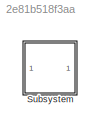
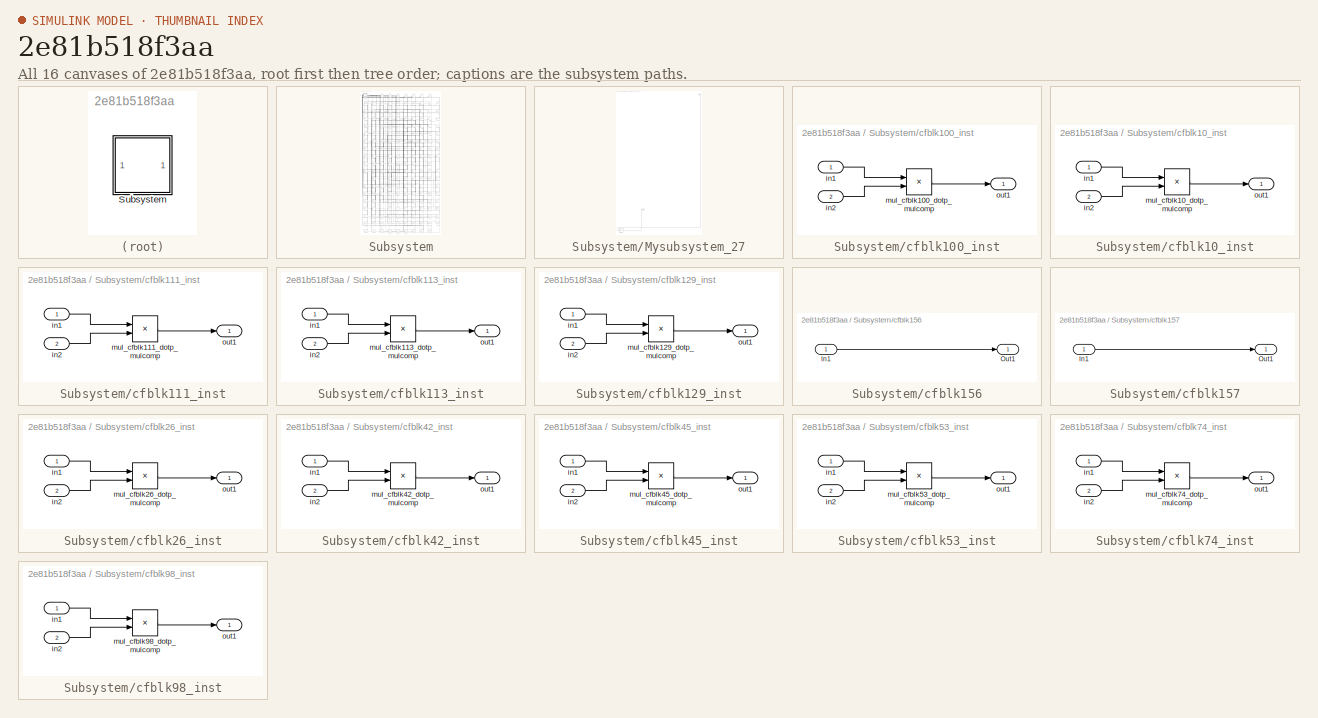
[diagram: thumbnail index - all 16 canvases of the model, root first then tree order]
MODEL slx_2e81b518f3aa
KIND model
CONFIG AbsTol = auto
CONFIG EnableMultiTasking = off
CONFIG FixedStep = auto
CONFIG MaxStep = auto
CONFIG MinStep = auto
CONFIG RelTol = 1e-3
CONFIG SampleTimeConstraint = Unconstrained
CONFIG SolverName = VariableStepAuto
CONFIG StartTime = 0.0
CONFIG StopTime = 10.0
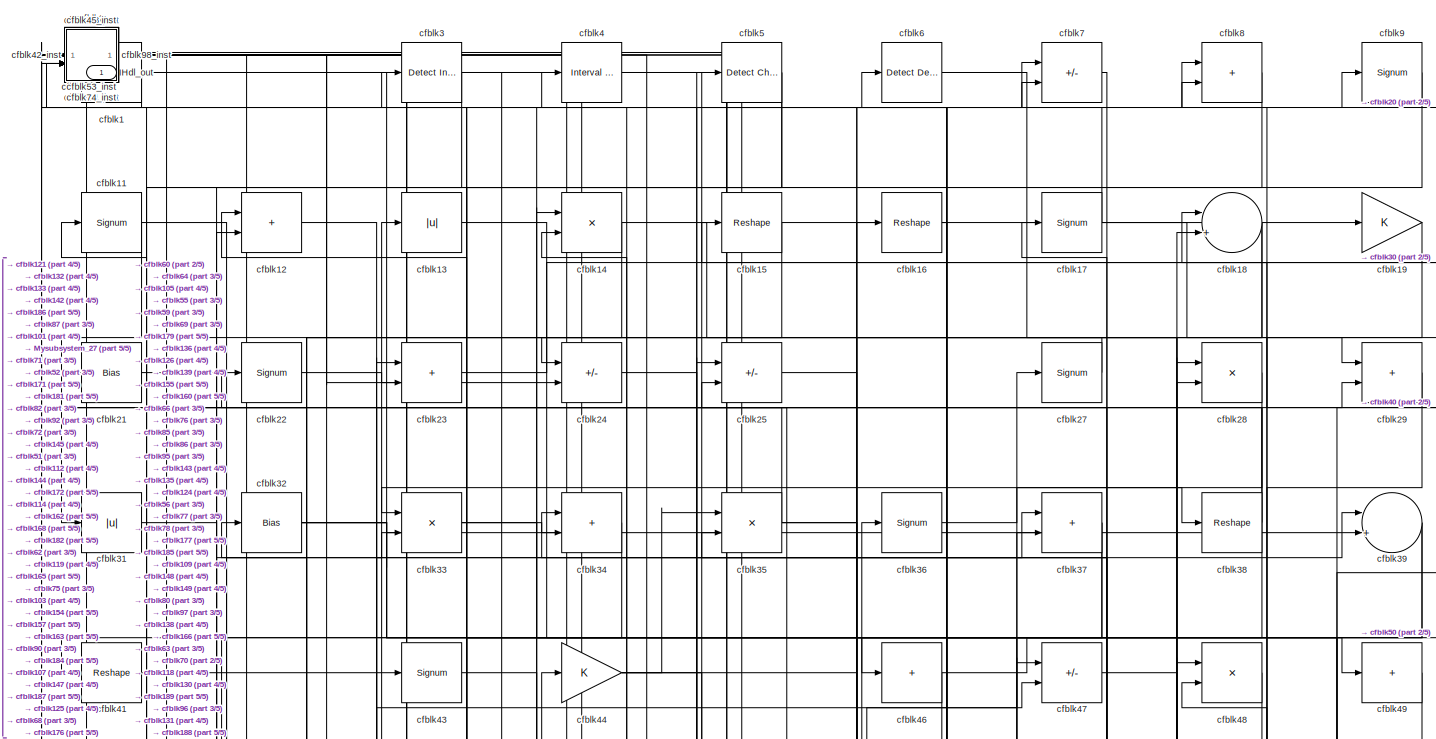
[diagram: Subsystem - part 1/5, full width, top band]
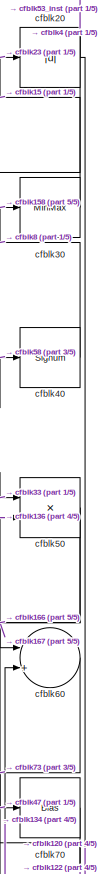
[diagram: Subsystem - part 2/5, top right region]
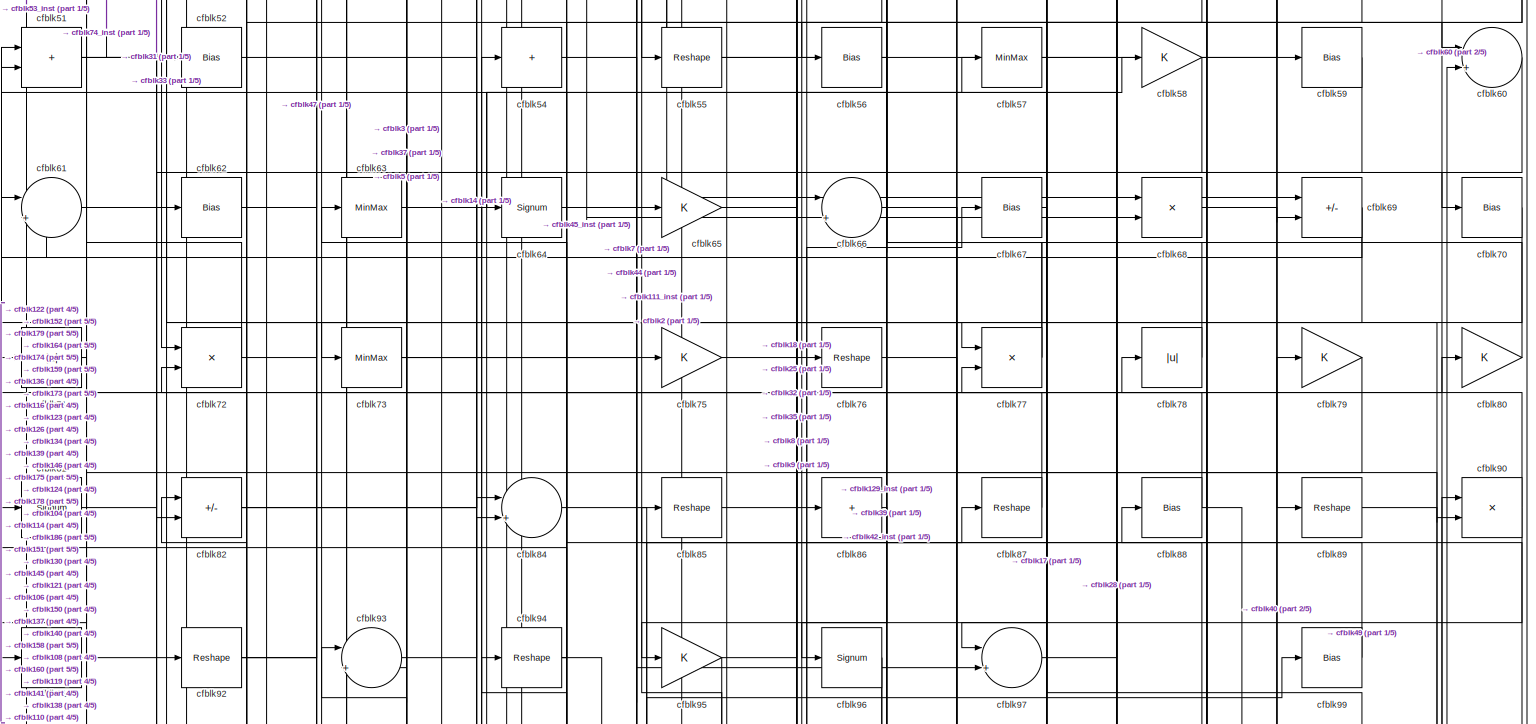
[diagram: Subsystem - part 3/5, full width, middle band]
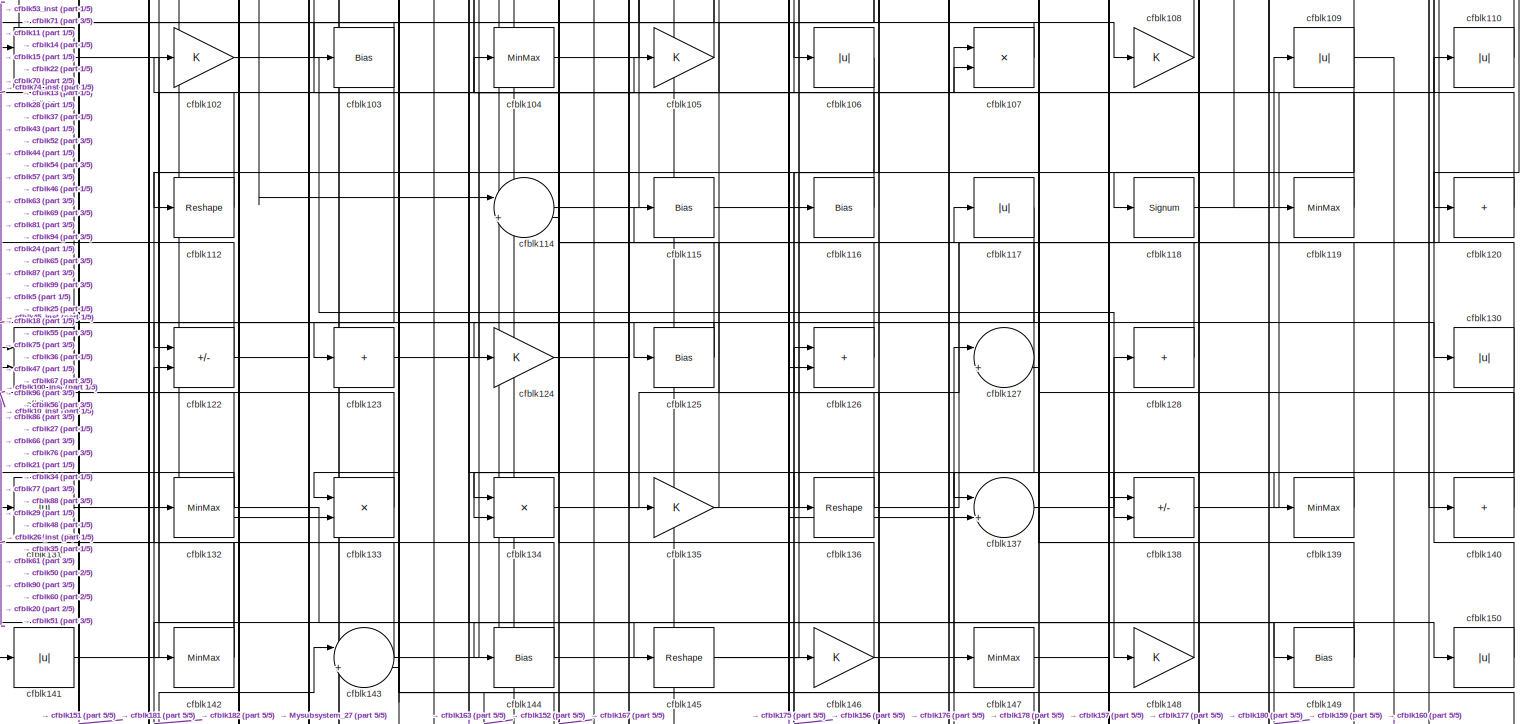
[diagram: Subsystem - part 4/5, full width, middle band]
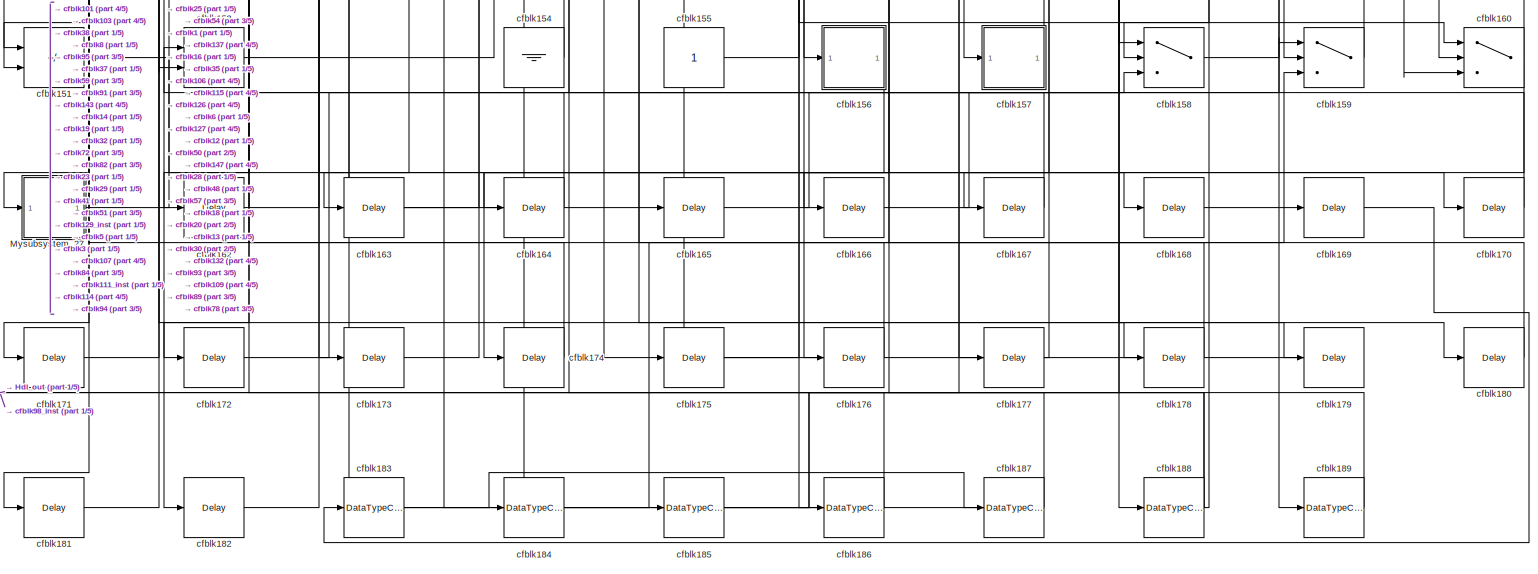
[diagram: Subsystem - part 5/5, full width, bottom band]
BLOCK [SubSystem] Subsystem
BLOCK [Outport] Subsystem/Hdl_out
  OutDataTypeStr = uint8
  SampleTime = 1
BLOCK [SubSystem] Subsystem/Mysubsystem_27
BLOCK [Inport] Subsystem/Mysubsystem_27/In1
  OutDataTypeStr = uint8
  PortDimensions = 1
  SampleTime = 1
BLOCK [Outport] Subsystem/Mysubsystem_27/Out1
  SampleTime = 1
BLOCK [Delay] Subsystem/Mysubsystem_27/cfblk161
  InputPortMap = u0
  SampleTime = 1
BLOCK [Reference] Subsystem/cfblk1  REF=simulink/Logic and Bit
Operations/Detect
Increase
  LibrarySourceBlock = hdlsllib/Logic and Bit\nOperations/Detect\nIncrease
  SourceBlock = simulink/Logic and Bit\nOperations/Detect\nIncrease
  SourceType = Detect Increase
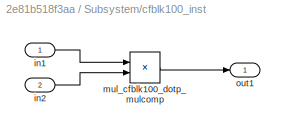
BLOCK [SubSystem] Subsystem/cfblk100_inst
BLOCK [Inport] Subsystem/cfblk100_inst/in1
  OutDataTypeStr = uint8
  SampleTime = 1
BLOCK [Inport] Subsystem/cfblk100_inst/in2
  OutDataTypeStr = uint8
  Port = 2
  SampleTime = 1
BLOCK [Product] Subsystem/cfblk100_inst/mul_cfblk100_dotp_mulcomp
  Inputs = **
  OutDataTypeStr = uint8
  SampleTime = 1
BLOCK [Outport] Subsystem/cfblk100_inst/out1
  OutDataTypeStr = uint8
  SampleTime = 1
BLOCK [Sum] Subsystem/cfblk101
  IconShape = rectangular
  OutDataTypeStr = uint8
BLOCK [Gain] Subsystem/cfblk102
  OutDataTypeStr = uint8
BLOCK [Bias] Subsystem/cfblk103
  Bias = 0.0
  SaturateOnIntegerOverflow = off
BLOCK [MinMax] Subsystem/cfblk104
  OutDataTypeStr = uint8
BLOCK [Gain] Subsystem/cfblk105
  OutDataTypeStr = uint8
BLOCK [Abs] Subsystem/cfblk106
  OutDataTypeStr = uint8
  SaturateOnIntegerOverflow = off
BLOCK [Product] Subsystem/cfblk107
  Inputs = */
  OutDataTypeStr = uint8
  RndMeth = Zero
  SaturateOnIntegerOverflow = on
BLOCK [Gain] Subsystem/cfblk108
  OutDataTypeStr = uint8
BLOCK [Abs] Subsystem/cfblk109
  OutDataTypeStr = uint8
  SaturateOnIntegerOverflow = off
BLOCK [SubSystem] Subsystem/cfblk10_inst
BLOCK [Inport] Subsystem/cfblk10_inst/in1
  OutDataTypeStr = uint8
  SampleTime = 1
BLOCK [Inport] Subsystem/cfblk10_inst/in2
  OutDataTypeStr = uint8
  Port = 2
  SampleTime = 1
BLOCK [Product] Subsystem/cfblk10_inst/mul_cfblk10_dotp_mulcomp
  Inputs = **
  OutDataTypeStr = uint8
  SampleTime = 1
BLOCK [Outport] Subsystem/cfblk10_inst/out1
  OutDataTypeStr = uint8
  SampleTime = 1
BLOCK [Signum] Subsystem/cfblk11
BLOCK [Abs] Subsystem/cfblk110
  OutDataTypeStr = uint8
  SaturateOnIntegerOverflow = off
BLOCK [SubSystem] Subsystem/cfblk111_inst
BLOCK [Inport] Subsystem/cfblk111_inst/in1
  OutDataTypeStr = uint8
  SampleTime = 1
BLOCK [Inport] Subsystem/cfblk111_inst/in2
  OutDataTypeStr = uint8
  Port = 2
  SampleTime = 1
BLOCK [Product] Subsystem/cfblk111_inst/mul_cfblk111_dotp_mulcomp
  Inputs = **
  OutDataTypeStr = uint8
  SampleTime = 1
BLOCK [Outport] Subsystem/cfblk111_inst/out1
  OutDataTypeStr = uint8
  SampleTime = 1
BLOCK [Reshape] Subsystem/cfblk112
BLOCK [SubSystem] Subsystem/cfblk113_inst
BLOCK [Inport] Subsystem/cfblk113_inst/in1
  OutDataTypeStr = uint8
  SampleTime = 1
BLOCK [Inport] Subsystem/cfblk113_inst/in2
  OutDataTypeStr = uint8
  Port = 2
  SampleTime = 1
BLOCK [Product] Subsystem/cfblk113_inst/mul_cfblk113_dotp_mulcomp
  Inputs = **
  OutDataTypeStr = uint8
  SampleTime = 1
BLOCK [Outport] Subsystem/cfblk113_inst/out1
  OutDataTypeStr = uint8
  SampleTime = 1
BLOCK [Sum] Subsystem/cfblk114
  Inputs = |++
  OutDataTypeStr = uint8
BLOCK [Bias] Subsystem/cfblk115
  Bias = 0.0
  SaturateOnIntegerOverflow = off
BLOCK [Bias] Subsystem/cfblk116
  Bias = 0.0
  SaturateOnIntegerOverflow = off
BLOCK [Abs] Subsystem/cfblk117
  OutDataTypeStr = uint8
  SaturateOnIntegerOverflow = off
BLOCK [Signum] Subsystem/cfblk118
BLOCK [MinMax] Subsystem/cfblk119
  OutDataTypeStr = uint8
BLOCK [Sum] Subsystem/cfblk12
  IconShape = rectangular
  OutDataTypeStr = uint8
BLOCK [Sum] Subsystem/cfblk120
  IconShape = rectangular
  Inputs = +
  OutDataTypeStr = uint8
BLOCK [Product] Subsystem/cfblk121
  Inputs = */
  OutDataTypeStr = uint8
  RndMeth = Zero
  SaturateOnIntegerOverflow = on
BLOCK [Sum] Subsystem/cfblk122
  IconShape = rectangular
  Inputs = +-
  OutDataTypeStr = uint8
BLOCK [Sum] Subsystem/cfblk123
  IconShape = rectangular
  Inputs = +
  OutDataTypeStr = uint8
BLOCK [Gain] Subsystem/cfblk124
  OutDataTypeStr = uint8
BLOCK [Bias] Subsystem/cfblk125
  Bias = 0.0
  SaturateOnIntegerOverflow = off
BLOCK [Sum] Subsystem/cfblk126
  IconShape = rectangular
  OutDataTypeStr = uint8
BLOCK [Sum] Subsystem/cfblk127
  Inputs = |++
  OutDataTypeStr = uint8
BLOCK [Sum] Subsystem/cfblk128
  IconShape = rectangular
  Inputs = +
  OutDataTypeStr = uint8
BLOCK [SubSystem] Subsystem/cfblk129_inst
BLOCK [Inport] Subsystem/cfblk129_inst/in1
  OutDataTypeStr = uint8
  SampleTime = 1
BLOCK [Inport] Subsystem/cfblk129_inst/in2
  OutDataTypeStr = uint8
  Port = 2
  SampleTime = 1
BLOCK [Product] Subsystem/cfblk129_inst/mul_cfblk129_dotp_mulcomp
  Inputs = **
  OutDataTypeStr = uint8
  SampleTime = 1
BLOCK [Outport] Subsystem/cfblk129_inst/out1
  OutDataTypeStr = uint8
  SampleTime = 1
BLOCK [Abs] Subsystem/cfblk13
  OutDataTypeStr = uint8
  SaturateOnIntegerOverflow = off
BLOCK [Abs] Subsystem/cfblk130
  OutDataTypeStr = uint8
  SaturateOnIntegerOverflow = off
BLOCK [Abs] Subsystem/cfblk131
  OutDataTypeStr = uint8
  SaturateOnIntegerOverflow = off
BLOCK [MinMax] Subsystem/cfblk132
  OutDataTypeStr = uint8
BLOCK [Product] Subsystem/cfblk133
  Inputs = */
  OutDataTypeStr = uint8
  RndMeth = Zero
  SaturateOnIntegerOverflow = on
BLOCK [Product] Subsystem/cfblk134
  Inputs = */
  OutDataTypeStr = uint8
  RndMeth = Zero
  SaturateOnIntegerOverflow = on
BLOCK [Gain] Subsystem/cfblk135
  OutDataTypeStr = uint8
BLOCK [Reshape] Subsystem/cfblk136
BLOCK [Sum] Subsystem/cfblk137
  Inputs = |++
  OutDataTypeStr = uint8
BLOCK [Sum] Subsystem/cfblk138
  IconShape = rectangular
  Inputs = +-
  OutDataTypeStr = uint8
BLOCK [MinMax] Subsystem/cfblk139
  OutDataTypeStr = uint8
BLOCK [Product] Subsystem/cfblk14
  Inputs = */
  OutDataTypeStr = uint8
  RndMeth = Zero
  SaturateOnIntegerOverflow = on
BLOCK [Sum] Subsystem/cfblk140
  IconShape = rectangular
  Inputs = +
  OutDataTypeStr = uint8
BLOCK [Abs] Subsystem/cfblk141
  OutDataTypeStr = uint8
  SaturateOnIntegerOverflow = off
BLOCK [MinMax] Subsystem/cfblk142
  OutDataTypeStr = uint8
BLOCK [Sum] Subsystem/cfblk143
  Inputs = |++
  OutDataTypeStr = uint8
BLOCK [Bias] Subsystem/cfblk144
  Bias = 0.0
  SaturateOnIntegerOverflow = off
BLOCK [Reshape] Subsystem/cfblk145
BLOCK [Gain] Subsystem/cfblk146
  OutDataTypeStr = uint8
BLOCK [MinMax] Subsystem/cfblk147
  OutDataTypeStr = uint8
BLOCK [Gain] Subsystem/cfblk148
  OutDataTypeStr = uint8
BLOCK [Bias] Subsystem/cfblk149
  Bias = 0.0
  SaturateOnIntegerOverflow = off
BLOCK [Reshape] Subsystem/cfblk15
BLOCK [Abs] Subsystem/cfblk150
  OutDataTypeStr = uint8
  SaturateOnIntegerOverflow = off
BLOCK [Sum] Subsystem/cfblk151
  IconShape = rectangular
  Inputs = +-
  OutDataTypeStr = uint8
BLOCK [Sum] Subsystem/cfblk152
  IconShape = rectangular
  OutDataTypeStr = uint8
BLOCK [Ground] Subsystem/cfblk154
BLOCK [Constant] Subsystem/cfblk155
  OutDataTypeStr = uint8
  SampleTime = -1
BLOCK [SubSystem] Subsystem/cfblk156
BLOCK [Inport] Subsystem/cfblk156/In1
  OutDataTypeStr = uint8
  PortDimensions = 1
  SampleTime = 1
BLOCK [Outport] Subsystem/cfblk156/Out1
  SampleTime = 1
BLOCK [SubSystem] Subsystem/cfblk157
BLOCK [Inport] Subsystem/cfblk157/In1
  OutDataTypeStr = uint8
  PortDimensions = 1
  SampleTime = 1
BLOCK [Outport] Subsystem/cfblk157/Out1
  SampleTime = 1
BLOCK [Switch] Subsystem/cfblk158
  InputSameDT = off
  OutDataTypeStr = uint8
  SaturateOnIntegerOverflow = off
BLOCK [Switch] Subsystem/cfblk159
  InputSameDT = off
  OutDataTypeStr = uint8
  SaturateOnIntegerOverflow = off
BLOCK [Reshape] Subsystem/cfblk16
BLOCK [Switch] Subsystem/cfblk160
  InputSameDT = off
  OutDataTypeStr = uint8
  SaturateOnIntegerOverflow = off
BLOCK [Delay] Subsystem/cfblk162
  InputPortMap = u0
  SampleTime = 1
BLOCK [Delay] Subsystem/cfblk163
  InputPortMap = u0
  SampleTime = 1
BLOCK [Delay] Subsystem/cfblk164
  InputPortMap = u0
  SampleTime = 1
BLOCK [Delay] Subsystem/cfblk165
  InputPortMap = u0
  SampleTime = 1
BLOCK [Delay] Subsystem/cfblk166
  InputPortMap = u0
  SampleTime = 1
BLOCK [Delay] Subsystem/cfblk167
  InputPortMap = u0
  SampleTime = 1
BLOCK [Delay] Subsystem/cfblk168
  InputPortMap = u0
  SampleTime = 1
BLOCK [Delay] Subsystem/cfblk169
  InputPortMap = u0
  SampleTime = 1
BLOCK [Signum] Subsystem/cfblk17
BLOCK [Delay] Subsystem/cfblk170
  InputPortMap = u0
  SampleTime = 1
BLOCK [Delay] Subsystem/cfblk171
  InputPortMap = u0
  SampleTime = 1
BLOCK [Delay] Subsystem/cfblk172
  InputPortMap = u0
  SampleTime = 1
BLOCK [Delay] Subsystem/cfblk173
  InputPortMap = u0
  SampleTime = 1
BLOCK [Delay] Subsystem/cfblk174
  InputPortMap = u0
  SampleTime = 1
BLOCK [Delay] Subsystem/cfblk175
  InputPortMap = u0
  SampleTime = 1
BLOCK [Delay] Subsystem/cfblk176
  InputPortMap = u0
  SampleTime = 1
BLOCK [Delay] Subsystem/cfblk177
  InputPortMap = u0
  SampleTime = 1
BLOCK [Delay] Subsystem/cfblk178
  InputPortMap = u0
  SampleTime = 1
BLOCK [Delay] Subsystem/cfblk179
  InputPortMap = u0
  SampleTime = 1
BLOCK [Sum] Subsystem/cfblk18
  Inputs = |++
  OutDataTypeStr = uint8
BLOCK [Delay] Subsystem/cfblk180
  InputPortMap = u0
  SampleTime = 1
BLOCK [Delay] Subsystem/cfblk181
  InputPortMap = u0
  SampleTime = 1
BLOCK [Delay] Subsystem/cfblk182
  InputPortMap = u0
  SampleTime = 1
BLOCK [DataTypeConversion] Subsystem/cfblk183
  OutDataTypeStr = uint8
  RndMeth = Floor
  SaturateOnIntegerOverflow = off
BLOCK [DataTypeConversion] Subsystem/cfblk184
  OutDataTypeStr = uint8
  RndMeth = Floor
  SaturateOnIntegerOverflow = off
BLOCK [DataTypeConversion] Subsystem/cfblk185
  OutDataTypeStr = uint8
  RndMeth = Floor
  SaturateOnIntegerOverflow = off
BLOCK [DataTypeConversion] Subsystem/cfblk186
  OutDataTypeStr = uint8
  RndMeth = Floor
  SaturateOnIntegerOverflow = off
BLOCK [DataTypeConversion] Subsystem/cfblk187
  OutDataTypeStr = uint8
  RndMeth = Floor
  SaturateOnIntegerOverflow = off
BLOCK [DataTypeConversion] Subsystem/cfblk188
  OutDataTypeStr = uint8
  RndMeth = Floor
  SaturateOnIntegerOverflow = off
BLOCK [DataTypeConversion] Subsystem/cfblk189
  OutDataTypeStr = uint8
  RndMeth = Floor
  SaturateOnIntegerOverflow = off
BLOCK [Gain] Subsystem/cfblk19
  OutDataTypeStr = uint8
BLOCK [Constant] Subsystem/cfblk2
  OutDataTypeStr = uint8
  SampleTime = 1
  Value = 0
BLOCK [Abs] Subsystem/cfblk20
  OutDataTypeStr = uint8
  SaturateOnIntegerOverflow = off
BLOCK [Bias] Subsystem/cfblk21
  Bias = 0.0
  SaturateOnIntegerOverflow = off
BLOCK [Signum] Subsystem/cfblk22
BLOCK [Sum] Subsystem/cfblk23
  IconShape = rectangular
  OutDataTypeStr = uint8
BLOCK [Sum] Subsystem/cfblk24
  IconShape = rectangular
  Inputs = +-
  OutDataTypeStr = uint8
BLOCK [Sum] Subsystem/cfblk25
  IconShape = rectangular
  Inputs = +-
  OutDataTypeStr = uint8
BLOCK [SubSystem] Subsystem/cfblk26_inst
BLOCK [Inport] Subsystem/cfblk26_inst/in1
  OutDataTypeStr = uint8
  SampleTime = 1
BLOCK [Inport] Subsystem/cfblk26_inst/in2
  OutDataTypeStr = uint8
  Port = 2
  SampleTime = 1
BLOCK [Product] Subsystem/cfblk26_inst/mul_cfblk26_dotp_mulcomp
  Inputs = **
  OutDataTypeStr = uint8
  SampleTime = 1
BLOCK [Outport] Subsystem/cfblk26_inst/out1
  OutDataTypeStr = uint8
  SampleTime = 1
BLOCK [Signum] Subsystem/cfblk27
BLOCK [Product] Subsystem/cfblk28
  Inputs = */
  OutDataTypeStr = uint8
  RndMeth = Zero
  SaturateOnIntegerOverflow = on
BLOCK [Sum] Subsystem/cfblk29
  IconShape = rectangular
  OutDataTypeStr = uint8
BLOCK [Reference] Subsystem/cfblk3  REF=simulink/Logic and Bit
Operations/Detect
Increase
  LibrarySourceBlock = hdlsllib/Logic and Bit\nOperations/Detect\nIncrease
  SourceBlock = simulink/Logic and Bit\nOperations/Detect\nIncrease
  SourceType = Detect Increase
BLOCK [MinMax] Subsystem/cfblk30
  OutDataTypeStr = uint8
BLOCK [Abs] Subsystem/cfblk31
  OutDataTypeStr = uint8
  SaturateOnIntegerOverflow = off
BLOCK [Bias] Subsystem/cfblk32
  Bias = 0.0
  SaturateOnIntegerOverflow = off
BLOCK [Product] Subsystem/cfblk33
  Inputs = */
  OutDataTypeStr = uint8
  RndMeth = Zero
  SaturateOnIntegerOverflow = on
BLOCK [Sum] Subsystem/cfblk34
  IconShape = rectangular
  OutDataTypeStr = uint8
BLOCK [Product] Subsystem/cfblk35
  Inputs = */
  OutDataTypeStr = uint8
  RndMeth = Zero
  SaturateOnIntegerOverflow = on
BLOCK [Signum] Subsystem/cfblk36
BLOCK [Sum] Subsystem/cfblk37
  IconShape = rectangular
  OutDataTypeStr = uint8
BLOCK [Reshape] Subsystem/cfblk38
BLOCK [Sum] Subsystem/cfblk39
  Inputs = |++
  OutDataTypeStr = uint8
BLOCK [Reference] Subsystem/cfblk4  REF=hdlsllib/Logic and Bit
Operations/Interval Test
  SourceBlock = hdlsllib/Logic and Bit\nOperations/Interval Test
  SourceType = Interval Test
BLOCK [Signum] Subsystem/cfblk40
BLOCK [Reshape] Subsystem/cfblk41
BLOCK [SubSystem] Subsystem/cfblk42_inst
BLOCK [Inport] Subsystem/cfblk42_inst/in1
  OutDataTypeStr = uint8
  SampleTime = 1
BLOCK [Inport] Subsystem/cfblk42_inst/in2
  OutDataTypeStr = uint8
  Port = 2
  SampleTime = 1
BLOCK [Product] Subsystem/cfblk42_inst/mul_cfblk42_dotp_mulcomp
  Inputs = **
  OutDataTypeStr = uint8
  SampleTime = 1
BLOCK [Outport] Subsystem/cfblk42_inst/out1
  OutDataTypeStr = uint8
  SampleTime = 1
BLOCK [Signum] Subsystem/cfblk43
BLOCK [Gain] Subsystem/cfblk44
  OutDataTypeStr = uint8
BLOCK [SubSystem] Subsystem/cfblk45_inst
BLOCK [Inport] Subsystem/cfblk45_inst/in1
  OutDataTypeStr = uint8
  SampleTime = 1
BLOCK [Inport] Subsystem/cfblk45_inst/in2
  OutDataTypeStr = uint8
  Port = 2
  SampleTime = 1
BLOCK [Product] Subsystem/cfblk45_inst/mul_cfblk45_dotp_mulcomp
  Inputs = **
  OutDataTypeStr = uint8
  SampleTime = 1
BLOCK [Outport] Subsystem/cfblk45_inst/out1
  OutDataTypeStr = uint8
  SampleTime = 1
BLOCK [Sum] Subsystem/cfblk46
  IconShape = rectangular
  Inputs = +
  OutDataTypeStr = uint8
BLOCK [Sum] Subsystem/cfblk47
  IconShape = rectangular
  Inputs = +-
  OutDataTypeStr = uint8
BLOCK [Product] Subsystem/cfblk48
  Inputs = */
  OutDataTypeStr = uint8
  RndMeth = Zero
  SaturateOnIntegerOverflow = on
BLOCK [Sum] Subsystem/cfblk49
  IconShape = rectangular
  Inputs = +
  OutDataTypeStr = uint8
BLOCK [Reference] Subsystem/cfblk5  REF=simulink/Logic and Bit
Operations/Detect
Change
  LibrarySourceBlock = hdlsllib/Logic and Bit\nOperations/Detect\nChange
  SourceBlock = simulink/Logic and Bit\nOperations/Detect\nChange
  SourceType = Detect Change
BLOCK [Product] Subsystem/cfblk50
  Inputs = */
  OutDataTypeStr = uint8
  RndMeth = Zero
  SaturateOnIntegerOverflow = on
BLOCK [Sum] Subsystem/cfblk51
  IconShape = rectangular
  OutDataTypeStr = uint8
BLOCK [Bias] Subsystem/cfblk52
  Bias = 0.0
  SaturateOnIntegerOverflow = off
BLOCK [SubSystem] Subsystem/cfblk53_inst
BLOCK [Inport] Subsystem/cfblk53_inst/in1
  OutDataTypeStr = uint8
  SampleTime = 1
BLOCK [Inport] Subsystem/cfblk53_inst/in2
  OutDataTypeStr = uint8
  Port = 2
  SampleTime = 1
BLOCK [Product] Subsystem/cfblk53_inst/mul_cfblk53_dotp_mulcomp
  Inputs = **
  OutDataTypeStr = uint8
  SampleTime = 1
BLOCK [Outport] Subsystem/cfblk53_inst/out1
  OutDataTypeStr = uint8
  SampleTime = 1
BLOCK [Sum] Subsystem/cfblk54
  IconShape = rectangular
  Inputs = +
  OutDataTypeStr = uint8
BLOCK [Reshape] Subsystem/cfblk55
BLOCK [Bias] Subsystem/cfblk56
  Bias = 0.0
  SaturateOnIntegerOverflow = off
BLOCK [MinMax] Subsystem/cfblk57
  OutDataTypeStr = uint8
BLOCK [Gain] Subsystem/cfblk58
  OutDataTypeStr = uint8
BLOCK [Bias] Subsystem/cfblk59
  Bias = 0.0
  SaturateOnIntegerOverflow = off
BLOCK [Reference] Subsystem/cfblk6  REF=simulink/Logic and Bit
Operations/Detect
Decrease
  LibrarySourceBlock = hdlsllib/Logic and Bit\nOperations/Detect\nDecrease
  SourceBlock = simulink/Logic and Bit\nOperations/Detect\nDecrease
  SourceType = Detect Decrease
BLOCK [Sum] Subsystem/cfblk60
  Inputs = |++
  OutDataTypeStr = uint8
BLOCK [Sum] Subsystem/cfblk61
  Inputs = |++
  OutDataTypeStr = uint8
BLOCK [Bias] Subsystem/cfblk62
  Bias = 0.0
  SaturateOnIntegerOverflow = off
BLOCK [MinMax] Subsystem/cfblk63
  OutDataTypeStr = uint8
BLOCK [Signum] Subsystem/cfblk64
BLOCK [Gain] Subsystem/cfblk65
  OutDataTypeStr = uint8
BLOCK [Sum] Subsystem/cfblk66
  Inputs = |++
  OutDataTypeStr = uint8
BLOCK [Bias] Subsystem/cfblk67
  Bias = 0.0
  SaturateOnIntegerOverflow = off
BLOCK [Product] Subsystem/cfblk68
  Inputs = */
  OutDataTypeStr = uint8
  RndMeth = Zero
  SaturateOnIntegerOverflow = on
BLOCK [Sum] Subsystem/cfblk69
  IconShape = rectangular
  Inputs = +-
  OutDataTypeStr = uint8
BLOCK [Sum] Subsystem/cfblk7
  IconShape = rectangular
  Inputs = +-
  OutDataTypeStr = uint8
BLOCK [Bias] Subsystem/cfblk70
  Bias = 0.0
  SaturateOnIntegerOverflow = off
BLOCK [Abs] Subsystem/cfblk71
  OutDataTypeStr = uint8
  SaturateOnIntegerOverflow = off
BLOCK [Product] Subsystem/cfblk72
  Inputs = */
  OutDataTypeStr = uint8
  RndMeth = Zero
  SaturateOnIntegerOverflow = on
BLOCK [MinMax] Subsystem/cfblk73
  OutDataTypeStr = uint8
BLOCK [SubSystem] Subsystem/cfblk74_inst
BLOCK [Inport] Subsystem/cfblk74_inst/in1
  OutDataTypeStr = uint8
  SampleTime = 1
BLOCK [Inport] Subsystem/cfblk74_inst/in2
  OutDataTypeStr = uint8
  Port = 2
  SampleTime = 1
BLOCK [Product] Subsystem/cfblk74_inst/mul_cfblk74_dotp_mulcomp
  Inputs = **
  OutDataTypeStr = uint8
  SampleTime = 1
BLOCK [Outport] Subsystem/cfblk74_inst/out1
  OutDataTypeStr = uint8
  SampleTime = 1
BLOCK [Gain] Subsystem/cfblk75
  OutDataTypeStr = uint8
BLOCK [Reshape] Subsystem/cfblk76
BLOCK [Product] Subsystem/cfblk77
  Inputs = */
  OutDataTypeStr = uint8
  RndMeth = Zero
  SaturateOnIntegerOverflow = on
BLOCK [Abs] Subsystem/cfblk78
  OutDataTypeStr = uint8
  SaturateOnIntegerOverflow = off
BLOCK [Gain] Subsystem/cfblk79
  OutDataTypeStr = uint8
BLOCK [Sum] Subsystem/cfblk8
  IconShape = rectangular
  OutDataTypeStr = uint8
BLOCK [Gain] Subsystem/cfblk80
  OutDataTypeStr = uint8
BLOCK [Signum] Subsystem/cfblk81
BLOCK [Sum] Subsystem/cfblk82
  IconShape = rectangular
  Inputs = +-
  OutDataTypeStr = uint8
BLOCK [Sum] Subsystem/cfblk84
  Inputs = |++
  OutDataTypeStr = uint8
BLOCK [Reshape] Subsystem/cfblk85
BLOCK [Sum] Subsystem/cfblk86
  IconShape = rectangular
  Inputs = +
  OutDataTypeStr = uint8
BLOCK [Reshape] Subsystem/cfblk87
BLOCK [Bias] Subsystem/cfblk88
  Bias = 0.0
  SaturateOnIntegerOverflow = off
BLOCK [Reshape] Subsystem/cfblk89
BLOCK [Signum] Subsystem/cfblk9
BLOCK [Product] Subsystem/cfblk90
  Inputs = */
  OutDataTypeStr = uint8
  RndMeth = Zero
  SaturateOnIntegerOverflow = on
BLOCK [Sum] Subsystem/cfblk91
  IconShape = rectangular
  Inputs = +
  OutDataTypeStr = uint8
BLOCK [Reshape] Subsystem/cfblk92
BLOCK [Sum] Subsystem/cfblk93
  Inputs = |++
  OutDataTypeStr = uint8
BLOCK [Reshape] Subsystem/cfblk94
BLOCK [Gain] Subsystem/cfblk95
  OutDataTypeStr = uint8
BLOCK [Signum] Subsystem/cfblk96
BLOCK [Sum] Subsystem/cfblk97
  Inputs = |++
  OutDataTypeStr = uint8
BLOCK [SubSystem] Subsystem/cfblk98_inst
BLOCK [Inport] Subsystem/cfblk98_inst/in1
  OutDataTypeStr = uint8
  SampleTime = 1
BLOCK [Inport] Subsystem/cfblk98_inst/in2
  OutDataTypeStr = uint8
  Port = 2
  SampleTime = 1
BLOCK [Product] Subsystem/cfblk98_inst/mul_cfblk98_dotp_mulcomp
  Inputs = **
  OutDataTypeStr = uint8
  SampleTime = 1
BLOCK [Outport] Subsystem/cfblk98_inst/out1
  OutDataTypeStr = uint8
  SampleTime = 1
BLOCK [Bias] Subsystem/cfblk99
  Bias = 0.0
  SaturateOnIntegerOverflow = off
LINE Subsystem/Mysubsystem_27/In1:1 -> Subsystem/Mysubsystem_27/cfblk161:1
LINE Subsystem/Mysubsystem_27/cfblk161:1 -> Subsystem/Mysubsystem_27/Out1:1
LINE Subsystem/Mysubsystem_27:1 -> Subsystem/cfblk143:1
LINE Subsystem/cfblk100_inst/in1:1 -> Subsystem/cfblk100_inst/mul_cfblk100_dotp_mulcomp:1
LINE Subsystem/cfblk100_inst/in2:1 -> Subsystem/cfblk100_inst/mul_cfblk100_dotp_mulcomp:2
LINE Subsystem/cfblk100_inst/mul_cfblk100_dotp_mulcomp:1 -> Subsystem/cfblk100_inst/out1:1
LINE Subsystem/cfblk100_inst:1 -> Subsystem/cfblk113_inst:1
LINE Subsystem/cfblk101:1 -> Subsystem/cfblk125:1
LINE Subsystem/cfblk102:1 -> Subsystem/cfblk148:1
NET Subsystem/cfblk103:1 -> Subsystem/cfblk151:2, Subsystem/cfblk181:1
LINE Subsystem/cfblk104:1 -> Subsystem/cfblk87:1
LINE Subsystem/cfblk105:1 -> Subsystem/cfblk5:1
LINE Subsystem/cfblk106:1 -> Subsystem/cfblk176:1
LINE Subsystem/cfblk107:1 -> Subsystem/cfblk44:1
LINE Subsystem/cfblk108:1 -> Subsystem/cfblk88:1
NET Subsystem/cfblk109:1 -> Subsystem/cfblk160:3, Subsystem/cfblk182:1, Subsystem/cfblk35:2
LINE Subsystem/cfblk10_inst/in1:1 -> Subsystem/cfblk10_inst/mul_cfblk10_dotp_mulcomp:1
LINE Subsystem/cfblk10_inst/in2:1 -> Subsystem/cfblk10_inst/mul_cfblk10_dotp_mulcomp:2
LINE Subsystem/cfblk10_inst/mul_cfblk10_dotp_mulcomp:1 -> Subsystem/cfblk10_inst/out1:1
LINE Subsystem/cfblk10_inst:1 -> Subsystem/cfblk19:1
LINE Subsystem/cfblk110:1 -> Subsystem/cfblk51:1
LINE Subsystem/cfblk111_inst/in1:1 -> Subsystem/cfblk111_inst/mul_cfblk111_dotp_mulcomp:1
LINE Subsystem/cfblk111_inst/in2:1 -> Subsystem/cfblk111_inst/mul_cfblk111_dotp_mulcomp:2
LINE Subsystem/cfblk111_inst/mul_cfblk111_dotp_mulcomp:1 -> Subsystem/cfblk111_inst/out1:1
LINE Subsystem/cfblk111_inst:1 -> Subsystem/cfblk59:1
LINE Subsystem/cfblk112:1 -> Subsystem/cfblk102:1
LINE Subsystem/cfblk113_inst/in1:1 -> Subsystem/cfblk113_inst/mul_cfblk113_dotp_mulcomp:1
LINE Subsystem/cfblk113_inst/in2:1 -> Subsystem/cfblk113_inst/mul_cfblk113_dotp_mulcomp:2
LINE Subsystem/cfblk113_inst/mul_cfblk113_dotp_mulcomp:1 -> Subsystem/cfblk113_inst/out1:1
LINE Subsystem/cfblk113_inst:1 -> Subsystem/cfblk10_inst:1
LINE Subsystem/cfblk114:1 -> Subsystem/cfblk99:1
LINE Subsystem/cfblk115:1 -> Subsystem/cfblk156:1
LINE Subsystem/cfblk116:1 -> Subsystem/cfblk54:1
LINE Subsystem/cfblk117:1 -> Subsystem/cfblk123:1
LINE Subsystem/cfblk118:1 -> Subsystem/cfblk109:1
LINE Subsystem/cfblk119:1 -> Subsystem/cfblk13:1
NET Subsystem/cfblk11:1 -> Subsystem/cfblk145:1, Subsystem/cfblk31:1
LINE Subsystem/cfblk120:1 -> Subsystem/cfblk107:1
LINE Subsystem/cfblk121:1 -> Subsystem/cfblk74_inst:2
NET Subsystem/cfblk122:1 -> Subsystem/cfblk105:1, Subsystem/cfblk51:2
LINE Subsystem/cfblk123:1 -> Subsystem/cfblk57:1
LINE Subsystem/cfblk124:1 -> Subsystem/cfblk65:1
NET Subsystem/cfblk125:1 -> Subsystem/cfblk121:1, Subsystem/cfblk45_inst:1
LINE Subsystem/cfblk126:1 -> Subsystem/cfblk81:1
NET Subsystem/cfblk127:1 -> Subsystem/cfblk104:1, Subsystem/cfblk157:1
LINE Subsystem/cfblk128:1 -> Subsystem/cfblk117:1
LINE Subsystem/cfblk129_inst/in1:1 -> Subsystem/cfblk129_inst/mul_cfblk129_dotp_mulcomp:1
LINE Subsystem/cfblk129_inst/in2:1 -> Subsystem/cfblk129_inst/mul_cfblk129_dotp_mulcomp:2
LINE Subsystem/cfblk129_inst/mul_cfblk129_dotp_mulcomp:1 -> Subsystem/cfblk129_inst/out1:1
NET Subsystem/cfblk129_inst:1 -> Subsystem/cfblk165:1, Subsystem/cfblk26_inst:2
LINE Subsystem/cfblk12:1 -> Subsystem/cfblk43:1
NET Subsystem/cfblk130:1 -> Subsystem/cfblk138:2, Subsystem/cfblk48:2
LINE Subsystem/cfblk131:1 -> Subsystem/cfblk27:1
NET Subsystem/cfblk132:1 -> Subsystem/cfblk100_inst:2, Subsystem/cfblk131:1, Subsystem/cfblk159:2
LINE Subsystem/cfblk133:1 -> Subsystem/cfblk10_inst:2
LINE Subsystem/cfblk134:1 -> Subsystem/cfblk60:2
NET Subsystem/cfblk135:1 -> Subsystem/cfblk115:1, Subsystem/cfblk47:2
NET Subsystem/cfblk136:1 -> Subsystem/cfblk25:2, Subsystem/cfblk50:2
LINE Subsystem/cfblk137:1 -> Subsystem/cfblk128:1
LINE Subsystem/cfblk138:1 -> Subsystem/cfblk90:1
LINE Subsystem/cfblk139:1 -> Subsystem/cfblk63:1
LINE Subsystem/cfblk13:1 -> Subsystem/cfblk189:1
LINE Subsystem/cfblk140:1 -> Subsystem/cfblk77:2
LINE Subsystem/cfblk141:1 -> Subsystem/cfblk79:1
NET Subsystem/cfblk142:1 -> Subsystem/cfblk26_inst:1, Subsystem/cfblk45_inst:2
NET Subsystem/cfblk143:1 -> Subsystem/cfblk122:2, Subsystem/cfblk36:1
LINE Subsystem/cfblk144:1 -> Subsystem/cfblk22:1
LINE Subsystem/cfblk145:1 -> Subsystem/cfblk67:1
LINE Subsystem/cfblk146:1 -> Subsystem/cfblk94:1
LINE Subsystem/cfblk147:1 -> Subsystem/cfblk180:1
LINE Subsystem/cfblk148:1 -> Subsystem/cfblk21:1
NET Subsystem/cfblk149:1 -> Subsystem/cfblk144:1, Subsystem/cfblk34:1
NET Subsystem/cfblk14:1 -> Subsystem/cfblk138:1, Subsystem/cfblk172:1
LINE Subsystem/cfblk150:1 -> Subsystem/cfblk110:1
LINE Subsystem/cfblk151:1 -> Subsystem/cfblk170:1
LINE Subsystem/cfblk152:1 -> Subsystem/cfblk127:1
LINE Subsystem/cfblk154:1 -> Subsystem/cfblk111_inst:1
LINE Subsystem/cfblk155:1 -> Subsystem/cfblk16:1
LINE Subsystem/cfblk156/In1:1 -> Subsystem/cfblk156/Out1:1
LINE Subsystem/cfblk156:1 -> Subsystem/cfblk174:1
LINE Subsystem/cfblk157/In1:1 -> Subsystem/cfblk157/Out1:1
LINE Subsystem/cfblk157:1 -> Subsystem/cfblk12:1
LINE Subsystem/cfblk158:1 -> Subsystem/cfblk30:1
LINE Subsystem/cfblk159:1 -> Subsystem/cfblk93:1
LINE Subsystem/cfblk15:1 -> Subsystem/cfblk112:1
NET Subsystem/cfblk160:1 -> Subsystem/cfblk164:1, Subsystem/cfblk78:1
LINE Subsystem/cfblk162:1 -> Subsystem/cfblk23:1
LINE Subsystem/cfblk163:1 -> Subsystem/cfblk107:2
LINE Subsystem/cfblk164:1 -> Subsystem/cfblk82:1
LINE Subsystem/cfblk165:1 -> Subsystem/cfblk159:1
LINE Subsystem/cfblk166:1 -> Subsystem/cfblk28:2
LINE Subsystem/cfblk167:1 -> Subsystem/cfblk114:2
LINE Subsystem/cfblk168:1 -> Subsystem/cfblk159:3
LINE Subsystem/cfblk169:1 -> Subsystem/cfblk183:1
LINE Subsystem/cfblk16:1 -> Subsystem/cfblk46:1
LINE Subsystem/cfblk170:1 -> Subsystem/cfblk152:1
LINE Subsystem/cfblk171:1 -> Subsystem/cfblk37:1
LINE Subsystem/cfblk172:1 -> Subsystem/cfblk158:3
LINE Subsystem/cfblk173:1 -> Subsystem/cfblk84:1
LINE Subsystem/cfblk174:1 -> Subsystem/cfblk72:2
LINE Subsystem/cfblk175:1 -> Subsystem/cfblk137:2
LINE Subsystem/cfblk176:1 -> Subsystem/cfblk25:1
LINE Subsystem/cfblk177:1 -> Subsystem/cfblk127:2
LINE Subsystem/cfblk178:1 -> Subsystem/cfblk126:1
LINE Subsystem/cfblk179:1 -> Subsystem/cfblk1:1
NET Subsystem/cfblk17:1 -> Subsystem/cfblk29:1, Subsystem/cfblk42_inst:2
LINE Subsystem/cfblk180:1 -> Subsystem/cfblk101:1
LINE Subsystem/cfblk181:1 -> Subsystem/cfblk12:2
LINE Subsystem/cfblk182:1 -> Subsystem/cfblk29:2
LINE Subsystem/cfblk183:1 -> Subsystem/cfblk187:1
LINE Subsystem/cfblk184:1 -> Subsystem/cfblk169:1
NET Subsystem/cfblk185:1 -> Subsystem/cfblk37:2, Subsystem/cfblk48:1
LINE Subsystem/cfblk186:1 -> Subsystem/cfblk98_inst:1
NET Subsystem/cfblk187:1 -> Subsystem/Hdl_out:1, Subsystem/cfblk98_inst:2
NET Subsystem/cfblk188:1 -> Subsystem/cfblk14:2, Subsystem/cfblk18:1, Subsystem/cfblk32:1
LINE Subsystem/cfblk189:1 -> Subsystem/cfblk6:1
NET Subsystem/cfblk18:1 -> Subsystem/cfblk126:2, Subsystem/cfblk71:1
LINE Subsystem/cfblk19:1 -> Subsystem/cfblk162:1
NET Subsystem/cfblk1:1 -> Subsystem/cfblk111_inst:2, Subsystem/cfblk39:2
NET Subsystem/cfblk20:1 -> Subsystem/cfblk120:1, Subsystem/cfblk158:2, Subsystem/cfblk4:1, Subsystem/cfblk53_inst:2
LINE Subsystem/cfblk21:1 -> Subsystem/cfblk132:1
LINE Subsystem/cfblk22:1 -> Subsystem/cfblk23:2
LINE Subsystem/cfblk23:1 -> Subsystem/cfblk20:1
LINE Subsystem/cfblk24:1 -> Subsystem/cfblk135:1
LINE Subsystem/cfblk25:1 -> Subsystem/cfblk76:1
LINE Subsystem/cfblk26_inst/in1:1 -> Subsystem/cfblk26_inst/mul_cfblk26_dotp_mulcomp:1
LINE Subsystem/cfblk26_inst/in2:1 -> Subsystem/cfblk26_inst/mul_cfblk26_dotp_mulcomp:2
LINE Subsystem/cfblk26_inst/mul_cfblk26_dotp_mulcomp:1 -> Subsystem/cfblk26_inst/out1:1
LINE Subsystem/cfblk26_inst:1 -> Subsystem/cfblk114:1
LINE Subsystem/cfblk27:1 -> Subsystem/cfblk24:1
LINE Subsystem/cfblk28:1 -> Subsystem/cfblk143:2
LINE Subsystem/cfblk29:1 -> Subsystem/cfblk118:1
LINE Subsystem/cfblk2:1 -> Subsystem/cfblk69:1
LINE Subsystem/cfblk30:1 -> Subsystem/cfblk15:1
LINE Subsystem/cfblk31:1 -> Subsystem/cfblk92:1
NET Subsystem/cfblk32:1 -> Subsystem/cfblk177:1, Subsystem/cfblk69:2, Subsystem/cfblk86:1
NET Subsystem/cfblk33:1 -> Subsystem/cfblk34:2, Subsystem/cfblk50:1
LINE Subsystem/cfblk34:1 -> Subsystem/cfblk133:1
NET Subsystem/cfblk35:1 -> Subsystem/cfblk113_inst:2, Subsystem/cfblk160:1, Subsystem/cfblk66:1
LINE Subsystem/cfblk36:1 -> Subsystem/cfblk38:1
NET Subsystem/cfblk37:1 -> Subsystem/cfblk103:1, Subsystem/cfblk72:1
NET Subsystem/cfblk38:1 -> Subsystem/Mysubsystem_27:1, Subsystem/cfblk100_inst:1, Subsystem/cfblk11:1
NET Subsystem/cfblk39:1 -> Subsystem/cfblk56:1, Subsystem/cfblk66:2
NET Subsystem/cfblk3:1 -> Subsystem/cfblk184:1, Subsystem/cfblk41:1
LINE Subsystem/cfblk40:1 -> Subsystem/cfblk8:1
LINE Subsystem/cfblk41:1 -> Subsystem/cfblk168:1
LINE Subsystem/cfblk42_inst/in1:1 -> Subsystem/cfblk42_inst/mul_cfblk42_dotp_mulcomp:1
LINE Subsystem/cfblk42_inst/in2:1 -> Subsystem/cfblk42_inst/mul_cfblk42_dotp_mulcomp:2
LINE Subsystem/cfblk42_inst/mul_cfblk42_dotp_mulcomp:1 -> Subsystem/cfblk42_inst/out1:1
LINE Subsystem/cfblk42_inst:1 -> Subsystem/cfblk24:2
LINE Subsystem/cfblk43:1 -> Subsystem/cfblk149:1
NET Subsystem/cfblk44:1 -> Subsystem/cfblk139:1, Subsystem/cfblk35:1, Subsystem/cfblk55:1
LINE Subsystem/cfblk45_inst/in1:1 -> Subsystem/cfblk45_inst/mul_cfblk45_dotp_mulcomp:1
LINE Subsystem/cfblk45_inst/in2:1 -> Subsystem/cfblk45_inst/mul_cfblk45_dotp_mulcomp:2
LINE Subsystem/cfblk45_inst/mul_cfblk45_dotp_mulcomp:1 -> Subsystem/cfblk45_inst/out1:1
LINE Subsystem/cfblk45_inst:1 -> Subsystem/cfblk68:2
NET Subsystem/cfblk46:1 -> Subsystem/cfblk124:1, Subsystem/cfblk49:1
LINE Subsystem/cfblk47:1 -> Subsystem/cfblk70:1
LINE Subsystem/cfblk48:1 -> Subsystem/cfblk142:1
LINE Subsystem/cfblk49:1 -> Subsystem/cfblk96:1
LINE Subsystem/cfblk4:1 -> Subsystem/cfblk60:1
NET Subsystem/cfblk50:1 -> Subsystem/cfblk166:1, Subsystem/cfblk167:1
NET Subsystem/cfblk51:1 -> Subsystem/cfblk173:1, Subsystem/cfblk33:2
LINE Subsystem/cfblk52:1 -> Subsystem/cfblk136:1
LINE Subsystem/cfblk53_inst/in1:1 -> Subsystem/cfblk53_inst/mul_cfblk53_dotp_mulcomp:1
LINE Subsystem/cfblk53_inst/in2:1 -> Subsystem/cfblk53_inst/mul_cfblk53_dotp_mulcomp:2
LINE Subsystem/cfblk53_inst/mul_cfblk53_dotp_mulcomp:1 -> Subsystem/cfblk53_inst/out1:1
NET Subsystem/cfblk53_inst:1 -> Subsystem/cfblk101:2, Subsystem/cfblk133:2, Subsystem/cfblk75:1
LINE Subsystem/cfblk54:1 -> Subsystem/cfblk178:1
LINE Subsystem/cfblk55:1 -> Subsystem/cfblk130:1
LINE Subsystem/cfblk56:1 -> Subsystem/cfblk116:1
LINE Subsystem/cfblk57:1 -> Subsystem/cfblk158:1
NET Subsystem/cfblk58:1 -> Subsystem/cfblk40:1, Subsystem/cfblk93:2
LINE Subsystem/cfblk59:1 -> Subsystem/cfblk152:2
NET Subsystem/cfblk5:1 -> Subsystem/cfblk163:1, Subsystem/cfblk82:2
LINE Subsystem/cfblk60:1 -> Subsystem/cfblk73:1
LINE Subsystem/cfblk61:1 -> Subsystem/cfblk140:1
LINE Subsystem/cfblk62:1 -> Subsystem/cfblk39:1
NET Subsystem/cfblk63:1 -> Subsystem/cfblk18:2, Subsystem/cfblk28:1
LINE Subsystem/cfblk64:1 -> Subsystem/cfblk7:1
LINE Subsystem/cfblk65:1 -> Subsystem/cfblk58:1
NET Subsystem/cfblk66:1 -> Subsystem/cfblk150:1, Subsystem/cfblk90:2
LINE Subsystem/cfblk67:1 -> Subsystem/cfblk137:1
LINE Subsystem/cfblk68:1 -> Subsystem/cfblk89:1
NET Subsystem/cfblk69:1 -> Subsystem/cfblk134:2, Subsystem/cfblk61:2
LINE Subsystem/cfblk6:1 -> Subsystem/cfblk188:1
LINE Subsystem/cfblk70:1 -> Subsystem/cfblk122:1
LINE Subsystem/cfblk71:1 -> Subsystem/cfblk141:1
NET Subsystem/cfblk72:1 -> Subsystem/cfblk53_inst:1, Subsystem/cfblk77:1
LINE Subsystem/cfblk73:1 -> Subsystem/cfblk97:2
LINE Subsystem/cfblk74_inst/in1:1 -> Subsystem/cfblk74_inst/mul_cfblk74_dotp_mulcomp:1
LINE Subsystem/cfblk74_inst/in2:1 -> Subsystem/cfblk74_inst/mul_cfblk74_dotp_mulcomp:2
LINE Subsystem/cfblk74_inst/mul_cfblk74_dotp_mulcomp:1 -> Subsystem/cfblk74_inst/out1:1
NET Subsystem/cfblk74_inst:1 -> Subsystem/cfblk147:1, Subsystem/cfblk52:1
LINE Subsystem/cfblk75:1 -> Subsystem/cfblk146:1
LINE Subsystem/cfblk76:1 -> Subsystem/cfblk108:1
NET Subsystem/cfblk77:1 -> Subsystem/cfblk129_inst:2, Subsystem/cfblk42_inst:1
LINE Subsystem/cfblk78:1 -> Subsystem/cfblk129_inst:1
LINE Subsystem/cfblk79:1 -> Subsystem/cfblk91:1
LINE Subsystem/cfblk7:1 -> Subsystem/cfblk97:1
LINE Subsystem/cfblk80:1 -> Subsystem/cfblk17:1
LINE Subsystem/cfblk81:1 -> Subsystem/cfblk62:1
NET Subsystem/cfblk82:1 -> Subsystem/cfblk14:1, Subsystem/cfblk7:2
LINE Subsystem/cfblk84:1 -> Subsystem/cfblk186:1
LINE Subsystem/cfblk85:1 -> Subsystem/cfblk9:1
LINE Subsystem/cfblk86:1 -> Subsystem/cfblk106:1
LINE Subsystem/cfblk87:1 -> Subsystem/cfblk74_inst:1
NET Subsystem/cfblk88:1 -> Subsystem/cfblk119:1, Subsystem/cfblk61:1
LINE Subsystem/cfblk89:1 -> Subsystem/cfblk160:2
LINE Subsystem/cfblk8:1 -> Subsystem/cfblk171:1
NET Subsystem/cfblk90:1 -> Subsystem/cfblk3:1, Subsystem/cfblk95:1
LINE Subsystem/cfblk91:1 -> Subsystem/cfblk179:1
NET Subsystem/cfblk92:1 -> Subsystem/cfblk47:1, Subsystem/cfblk80:1
LINE Subsystem/cfblk93:1 -> Subsystem/cfblk84:2
NET Subsystem/cfblk94:1 -> Subsystem/cfblk175:1, Subsystem/cfblk64:1
NET Subsystem/cfblk95:1 -> Subsystem/cfblk151:1, Subsystem/cfblk8:2
NET Subsystem/cfblk96:1 -> Subsystem/cfblk121:2, Subsystem/cfblk134:1
LINE Subsystem/cfblk97:1 -> Subsystem/cfblk68:1
LINE Subsystem/cfblk98_inst/in1:1 -> Subsystem/cfblk98_inst/mul_cfblk98_dotp_mulcomp:1
LINE Subsystem/cfblk98_inst/in2:1 -> Subsystem/cfblk98_inst/mul_cfblk98_dotp_mulcomp:2
LINE Subsystem/cfblk98_inst/mul_cfblk98_dotp_mulcomp:1 -> Subsystem/cfblk98_inst/out1:1
LINE Subsystem/cfblk98_inst:1 -> Subsystem/cfblk185:1
LINE Subsystem/cfblk99:1 -> Subsystem/cfblk85:1
LINE Subsystem/cfblk9:1 -> Subsystem/cfblk33:1
note: NET lines group one-source signal fan-out (src -> all destinations, sorted); 1:1 wires keep LINE
